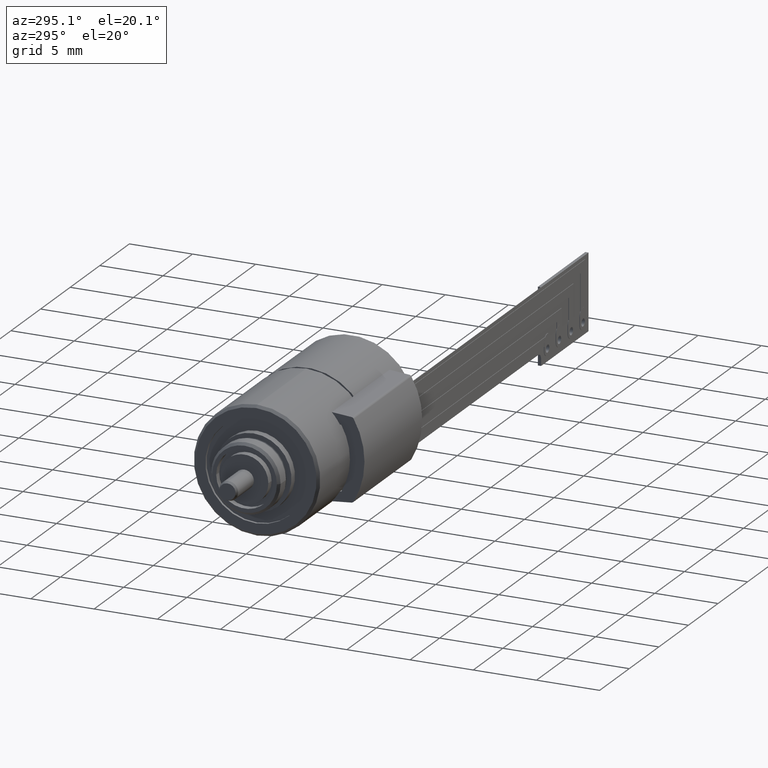
[diagram: clean part render]
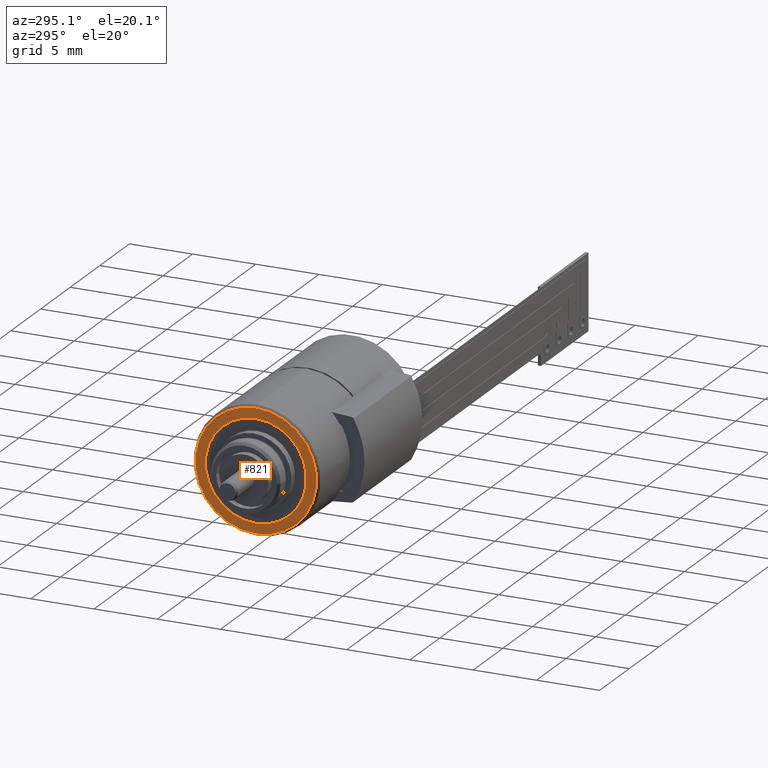
[diagram: same view with one face highlighted and labeled with its STEP entity id]
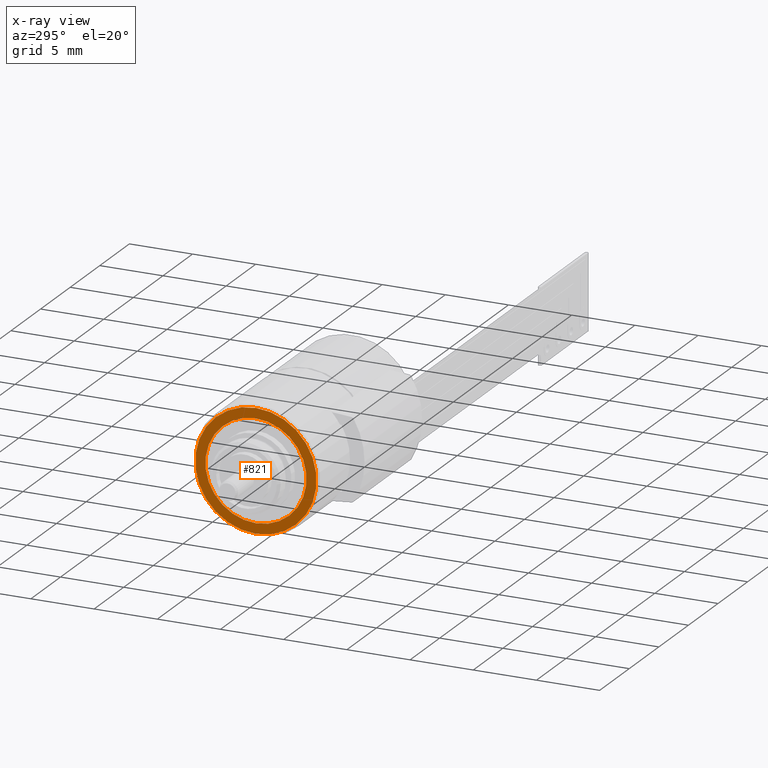
[diagram: x-ray of the same camera — body ghosted, the highlighted face saturated]
A machine part, auxiliary view. The second image highlights one B-rep face of the part: STEP entity #821.
The next image is the same camera in x-ray: the body ghosted, the highlighted face saturated — about 0% of this face is hidden behind the body in this view.
In plain terms, the highlighted planar face has unit normal (1, 0, 0).
Its self-contained STEP definition (entity closure, byte-faithful):
#224=CARTESIAN_POINT('',(8.5E0,0.E0,0.E0));
#225=DIRECTION('',(-1.E0,0.E0,0.E0));
#226=DIRECTION('',(0.E0,0.E0,-1.E0));
#227=AXIS2_PLACEMENT_3D('',#224,#225,#226);
#229=CARTESIAN_POINT('',(8.5E0,0.E0,0.E0));
#230=DIRECTION('',(-1.E0,0.E0,0.E0));
#231=DIRECTION('',(0.E0,0.E0,1.E0));
#232=AXIS2_PLACEMENT_3D('',#229,#230,#231);
#234=CARTESIAN_POINT('',(8.5E0,0.E0,0.E0));
#235=DIRECTION('',(1.E0,0.E0,0.E0));
#236=DIRECTION('',(0.E0,0.E0,-1.E0));
#237=AXIS2_PLACEMENT_3D('',#234,#235,#236);
#239=CARTESIAN_POINT('',(8.5E0,0.E0,0.E0));
#240=DIRECTION('',(1.E0,0.E0,0.E0));
#241=DIRECTION('',(0.E0,0.E0,1.E0));
#242=AXIS2_PLACEMENT_3D('',#239,#240,#241);
#477=CARTESIAN_POINT('',(8.5E0,0.E0,-4.E0));
#478=VERTEX_POINT('',#477);
#479=CARTESIAN_POINT('',(8.5E0,0.E0,4.E0));
#480=VERTEX_POINT('',#479);
#481=CARTESIAN_POINT('',(8.5E0,0.E0,-4.8E0));
#482=CARTESIAN_POINT('',(8.5E0,0.E0,4.8E0));
#483=VERTEX_POINT('',#481);
#484=VERTEX_POINT('',#482);
#806=CARTESIAN_POINT('',(8.5E0,4.E0,0.E0));
#807=DIRECTION('',(-1.E0,0.E0,0.E0));
#808=DIRECTION('',(0.E0,0.E0,1.E0));
#809=AXIS2_PLACEMENT_3D('',#806,#807,#808);
#810=PLANE('',#809);
#812=ORIENTED_EDGE('',*,*,#811,.T.);
#814=ORIENTED_EDGE('',*,*,#813,.T.);
#815=EDGE_LOOP('',(#812,#814));
#816=FACE_OUTER_BOUND('',#815,.F.);
#817=ORIENTED_EDGE('',*,*,#788,.T.);
#818=ORIENTED_EDGE('',*,*,#798,.T.);
#819=EDGE_LOOP('',(#817,#818));
#820=FACE_BOUND('',#819,.F.);
#821=ADVANCED_FACE('',(#816,#820),#810,.F.);
#228=CIRCLE('',#227,4.8E0);
#233=CIRCLE('',#232,4.8E0);
#238=CIRCLE('',#237,4.E0);
#243=CIRCLE('',#242,4.E0);
#788=EDGE_CURVE('',#478,#480,#238,.T.);
#798=EDGE_CURVE('',#480,#478,#243,.T.);
#811=EDGE_CURVE('',#483,#484,#228,.T.);
#813=EDGE_CURVE('',#484,#483,#233,.T.);